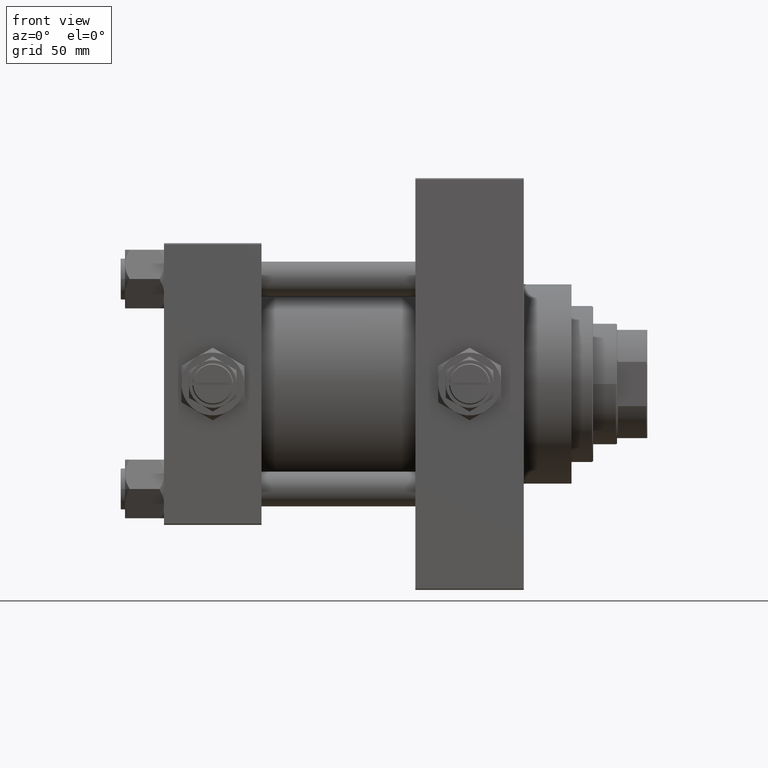
[diagram: clean part render]
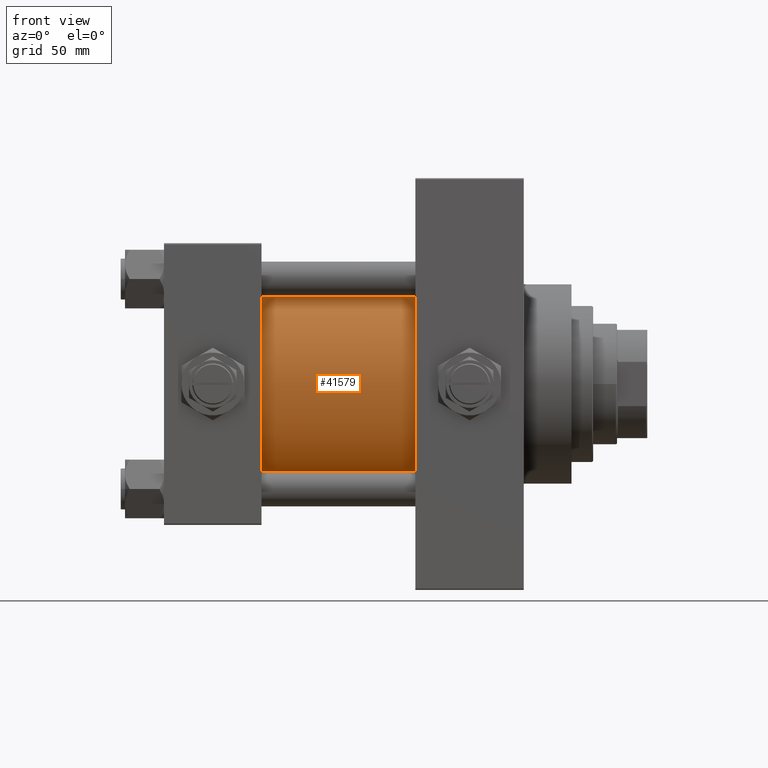
[diagram: same view with one face highlighted and labeled with its STEP entity id]
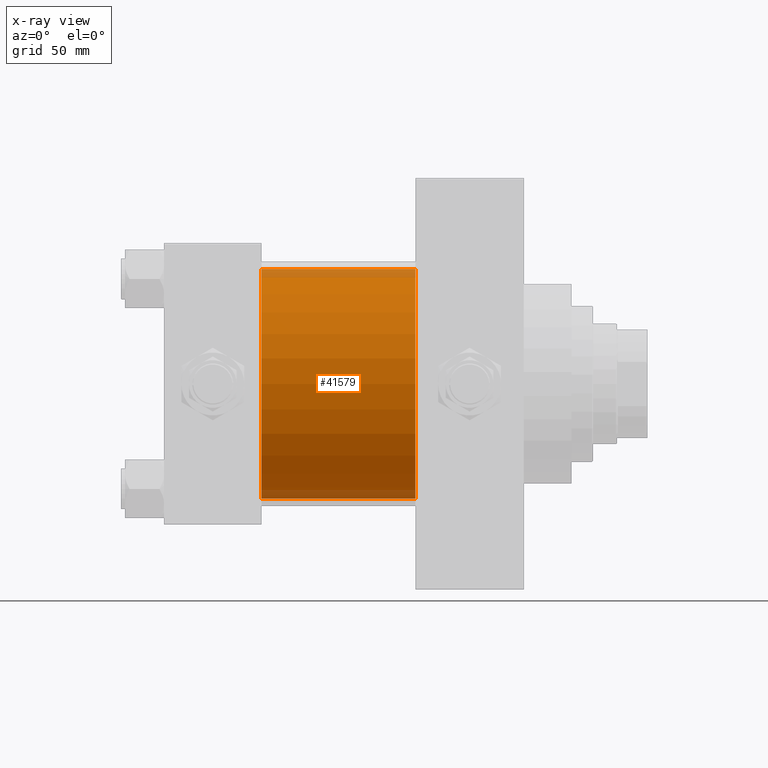
[diagram: x-ray of the same camera — body ghosted, the highlighted face saturated]
A machine part, front view. The second image highlights one B-rep face of the part: STEP entity #41579.
The next image is the same camera in x-ray: the body ghosted, the highlighted face saturated — about 7% of this face is hidden behind the body in this view.
In plain terms, the highlighted cylindrical surface (partial cylindrical patch) has radius 53 mm, axis along (-1, -0, -0).
Its self-contained STEP definition (entity closure, byte-faithful):
#159 = VECTOR ( 'NONE', #38657, 1000.000000000000000 ) ;
#344 = CARTESIAN_POINT ( 'NONE',  ( 115.9999999999999858, -2.602085213965210642E-15, 53.00000000000000711 ) ) ;
#1696 = CARTESIAN_POINT ( 'NONE',  ( 115.9999999999999858, 3.888542821515762466E-15, -53.00000000000000711 ) ) ;
#2976 = VERTEX_POINT ( 'NONE', #38384 ) ;
#4290 = CYLINDRICAL_SURFACE ( 'NONE', #33627, 53.00000000000000711 ) ;
#5505 = CARTESIAN_POINT ( 'NONE',  ( 115.9999999999999858, -2.602085213965210642E-15, 53.00000000000000711 ) ) ;
#7837 = FACE_OUTER_BOUND ( 'NONE', #21800, .T. ) ;
#8437 = AXIS2_PLACEMENT_3D ( 'NONE', #44598, #10310, #37263 ) ;
#10310 = DIRECTION ( 'NONE',  ( 1.000000000000000000, -0.000000000000000000, 0.000000000000000000 ) ) ;
#11985 = VECTOR ( 'NONE', #20590, 1000.000000000000000 ) ;
#13006 = EDGE_CURVE ( 'NONE', #39017, #2976, #19495, .T. ) ;
#13051 = LINE ( 'NONE', #1696, #11985 ) ;
#15072 = DIRECTION ( 'NONE',  ( 1.000000000000000000, 0.000000000000000000, 0.000000000000000000 ) ) ;
#15397 = DIRECTION ( 'NONE',  ( 0.000000000000000000, 0.000000000000000000, 1.000000000000000000 ) ) ;
#16931 = ORIENTED_EDGE ( 'NONE', *, *, #25338, .F. ) ;
#18657 = ORIENTED_EDGE ( 'NONE', *, *, #31492, .T. ) ;
#19495 = LINE ( 'NONE', #344, #159 ) ;
#20403 = AXIS2_PLACEMENT_3D ( 'NONE', #33711, #15072, #37995 ) ;
#20590 = DIRECTION ( 'NONE',  ( -1.000000000000000000, -0.000000000000000000, -0.000000000000000000 ) ) ;
#20763 = ORIENTED_EDGE ( 'NONE', *, *, #13006, .T. ) ;
#21800 = EDGE_LOOP ( 'NONE', ( #44176, #16931, #20763, #18657 ) ) ;
#25338 = EDGE_CURVE ( 'NONE', #39017, #49181, #42148, .T. ) ;
#31492 = EDGE_CURVE ( 'NONE', #2976, #36078, #35804, .T. ) ;
#33627 = AXIS2_PLACEMENT_3D ( 'NONE', #42108, #42614, #15397 ) ;
#33711 = CARTESIAN_POINT ( 'NONE',  ( 115.9999999999999858, -2.602085213965210642E-15, 0.000000000000000000 ) ) ;
#35032 = CARTESIAN_POINT ( 'NONE',  ( 45.00000000000000000, 3.888542821515762466E-15, -53.00000000000000711 ) ) ;
#35804 = CIRCLE ( 'NONE', #8437, 53.00000000000000711 ) ;
#36078 = VERTEX_POINT ( 'NONE', #35032 ) ;
#37263 = DIRECTION ( 'NONE',  ( 0.000000000000000000, 0.000000000000000000, 1.000000000000000000 ) ) ;
#37995 = DIRECTION ( 'NONE',  ( 0.000000000000000000, 0.000000000000000000, -1.000000000000000000 ) ) ;
#38384 = CARTESIAN_POINT ( 'NONE',  ( 45.00000000000000000, -2.602085213965210642E-15, 53.00000000000000711 ) ) ;
#38657 = DIRECTION ( 'NONE',  ( -1.000000000000000000, -0.000000000000000000, -0.000000000000000000 ) ) ;
#39017 = VERTEX_POINT ( 'NONE', #5505 ) ;
#41579 = ADVANCED_FACE ( 'NONE', ( #7837 ), #4290, .T. ) ;
#42108 = CARTESIAN_POINT ( 'NONE',  ( 115.9999999999999858, -2.602085213965210642E-15, 0.000000000000000000 ) ) ;
#42148 = CIRCLE ( 'NONE', #20403, 53.00000000000000711 ) ;
#42614 = DIRECTION ( 'NONE',  ( -1.000000000000000000, -0.000000000000000000, -0.000000000000000000 ) ) ;
#43005 = CARTESIAN_POINT ( 'NONE',  ( 115.9999999999999858, 3.888542821515762466E-15, -53.00000000000000711 ) ) ;
#43102 = EDGE_CURVE ( 'NONE', #49181, #36078, #13051, .T. ) ;
#44176 = ORIENTED_EDGE ( 'NONE', *, *, #43102, .F. ) ;
#44598 = CARTESIAN_POINT ( 'NONE',  ( 45.00000000000000000, -2.602085213965210642E-15, 0.000000000000000000 ) ) ;
#49181 = VERTEX_POINT ( 'NONE', #43005 ) ;